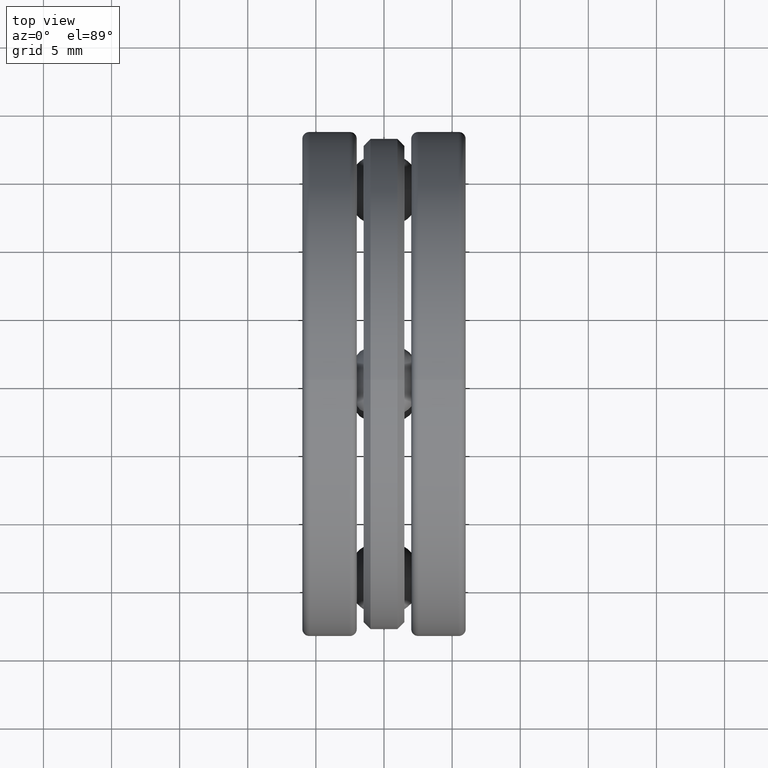
[diagram: clean part render]
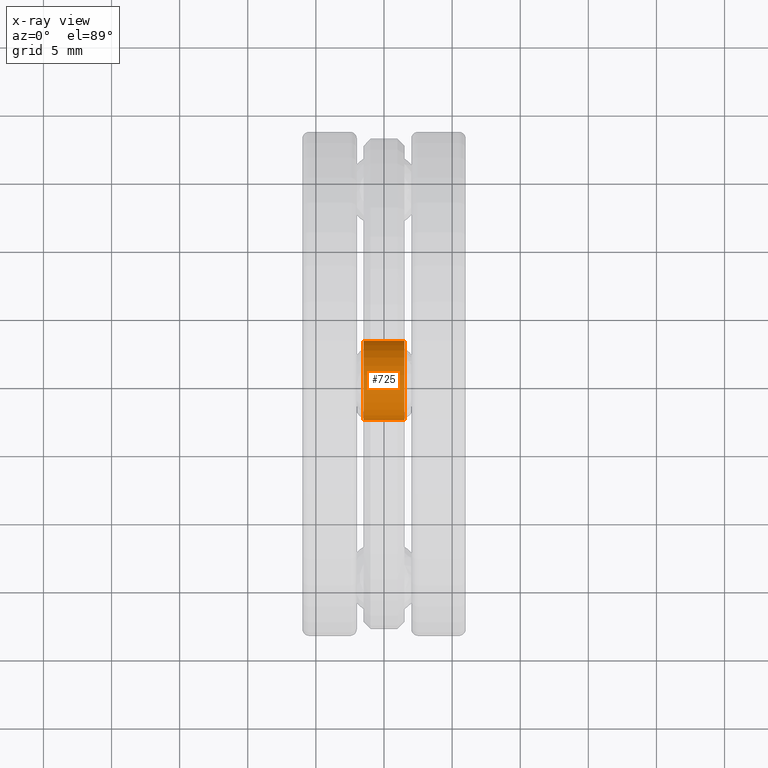
[diagram: x-ray — body ghosted, one internal face saturated and labeled with its STEP entity id]
A machine part, top view, then the same camera in x-ray: the body is ghosted and one INTERNAL B-rep face — a face not visible from any outside direction — is saturated and labeled: STEP entity #725.
In plain terms, the highlighted cylindrical surface (bore or boss wall) has radius 2.9083 mm, axis along (1, 0, 0).
Its self-contained STEP definition (entity closure, byte-faithful):
#13 = CARTESIAN_POINT ( 'NONE',  ( -0.05900000000000000400, 0.1145000000000058700, 0.5609999999999988300 ) ) ;
#21 = ORIENTED_EDGE ( 'NONE', *, *, #246, .T. ) ;
#62 = DIRECTION ( 'NONE',  ( 0.0000000000000000000, 1.000000000000000000, -1.073652049911719200E-014 ) ) ;
#66 = CARTESIAN_POINT ( 'NONE',  ( 0.05899999999999999700, 5.876163093272994000E-015, 0.5610000000000000500 ) ) ;
#69 = CARTESIAN_POINT ( 'NONE',  ( 0.05899999999999999700, 0.1145000000000058700, 0.5609999999999988300 ) ) ;
#108 = EDGE_LOOP ( 'NONE', ( #778 ) ) ;
#130 = CIRCLE ( 'NONE', #600, 0.1145000000000000000 ) ;
#237 = EDGE_CURVE ( 'NONE', #256, #256, #489, .T. ) ;
#242 = DIRECTION ( 'NONE',  ( 0.0000000000000000000, 1.000000000000000000, -1.073652049911719200E-014 ) ) ;
#246 = EDGE_CURVE ( 'NONE', #498, #498, #130, .T. ) ;
#256 = VERTEX_POINT ( 'NONE', #69 ) ;
#321 = DIRECTION ( 'NONE',  ( 1.000000000000000000, 0.0000000000000000000, 0.0000000000000000000 ) ) ;
#347 = FACE_OUTER_BOUND ( 'NONE', #108, .T. ) ;
#368 = DIRECTION ( 'NONE',  ( 1.000000000000000000, 0.0000000000000000000, 0.0000000000000000000 ) ) ;
#369 = CYLINDRICAL_SURFACE ( 'NONE', #473, 0.1145000000000000000 ) ;
#397 = CARTESIAN_POINT ( 'NONE',  ( -0.05900000000000000400, 5.876163093272994000E-015, 0.5610000000000000500 ) ) ;
#398 = FACE_OUTER_BOUND ( 'NONE', #671, .T. ) ;
#455 = DIRECTION ( 'NONE',  ( -1.000000000000000000, -0.0000000000000000000, -0.0000000000000000000 ) ) ;
#473 = AXIS2_PLACEMENT_3D ( 'NONE', #629, #368, #242 ) ;
#489 = CIRCLE ( 'NONE', #731, 0.1145000000000000000 ) ;
#498 = VERTEX_POINT ( 'NONE', #13 ) ;
#525 = DIRECTION ( 'NONE',  ( 0.0000000000000000000, 1.000000000000000000, -1.073652049911719200E-014 ) ) ;
#600 = AXIS2_PLACEMENT_3D ( 'NONE', #397, #455, #525 ) ;
#629 = CARTESIAN_POINT ( 'NONE',  ( -0.2360393700787402600, 5.876163093272994000E-015, 0.5610000000000000500 ) ) ;
#671 = EDGE_LOOP ( 'NONE', ( #21 ) ) ;
#725 = ADVANCED_FACE ( 'NONE', ( #347, #398 ), #369, .F. ) ;
#731 = AXIS2_PLACEMENT_3D ( 'NONE', #66, #321, #62 ) ;
#778 = ORIENTED_EDGE ( 'NONE', *, *, #237, .T. ) ;